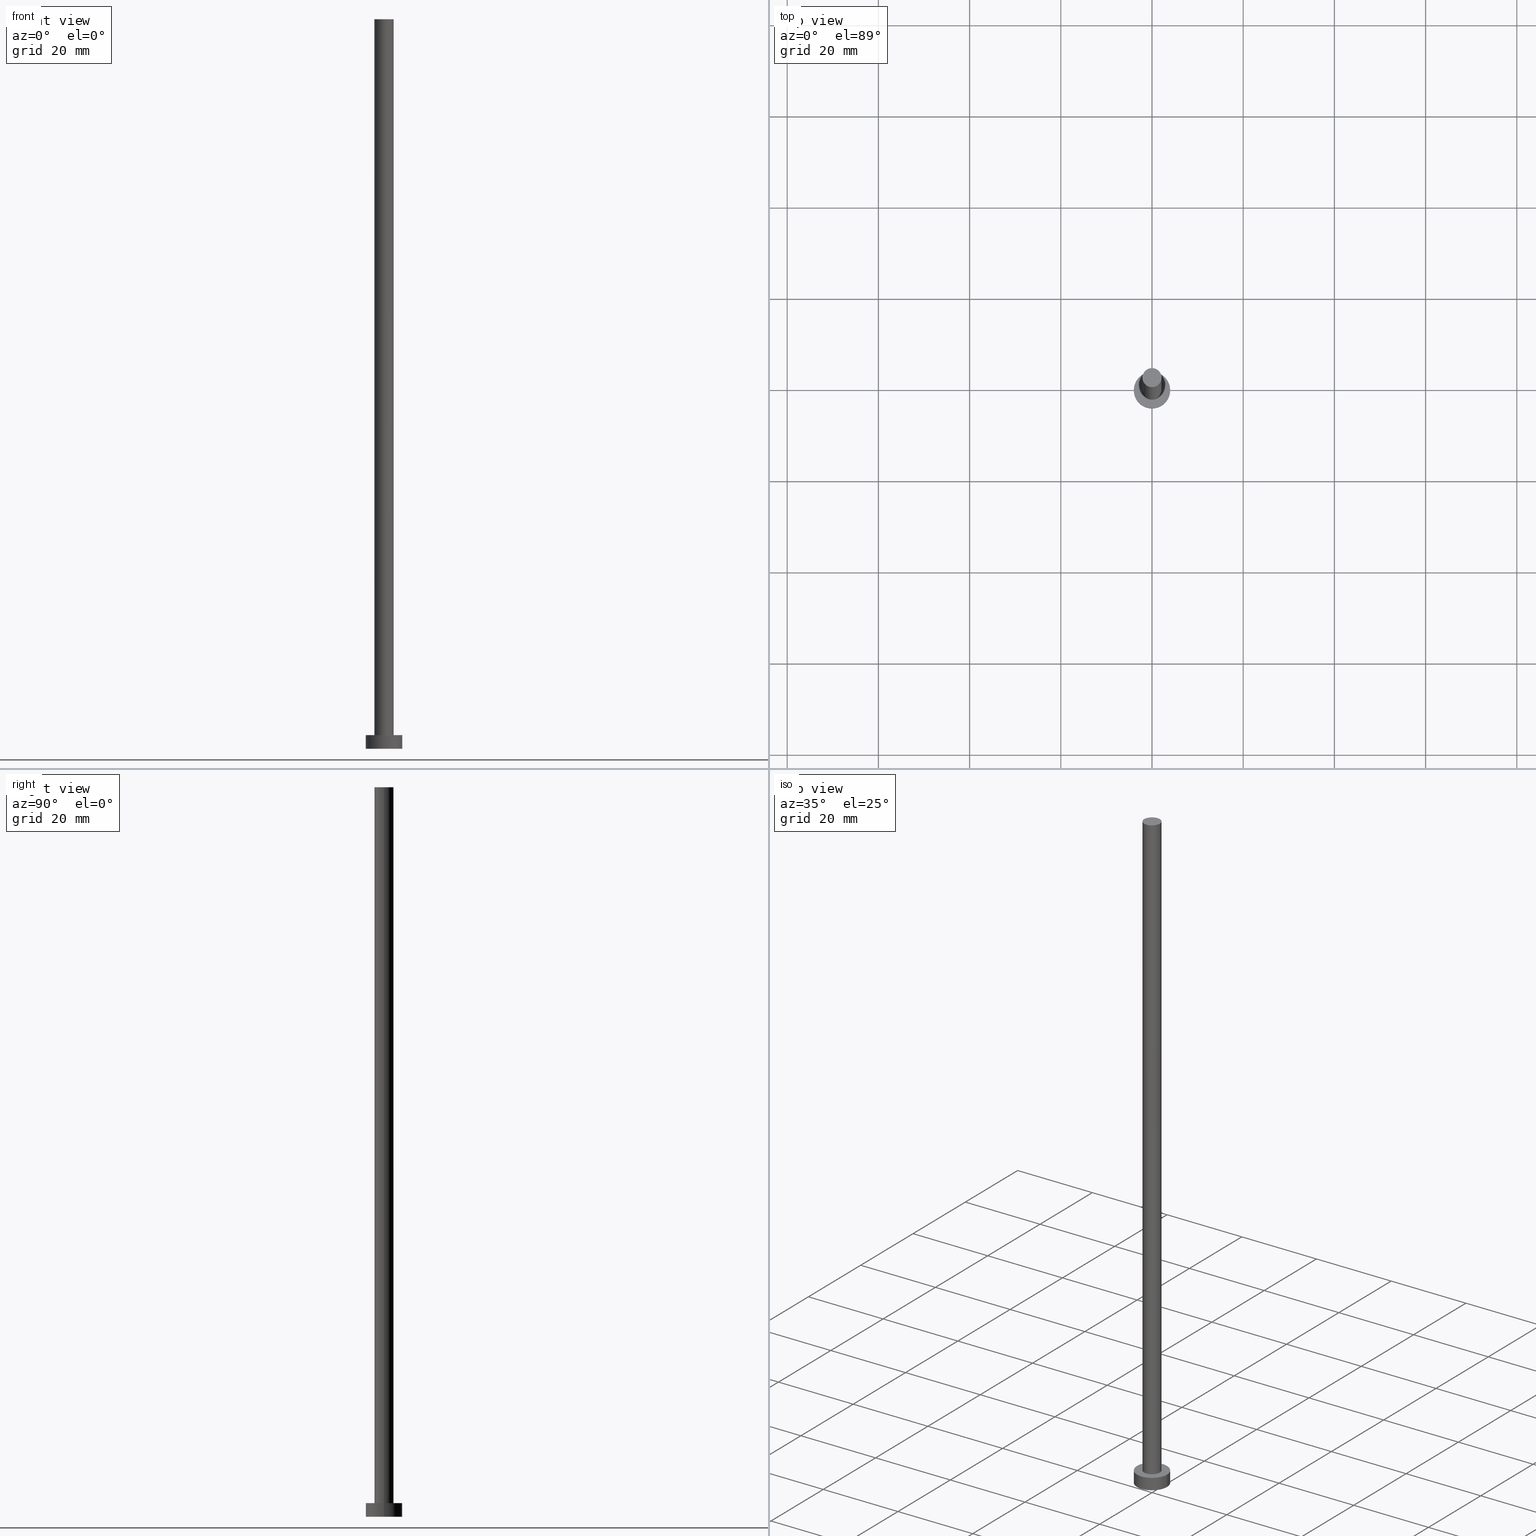
[diagram: canonical four-view strip — front | top / right | iso, engineering-drawing reading convention]
A machine part, canonical four-view strip (front | top / right | iso — engineering-drawing reading convention). The complete STEP part file that produces these views, byte-faithful:
ISO-10303-21;
HEADER;
FILE_DESCRIPTION (( 'STEP AP203' ),
    '1' );
FILE_NAME ('acfa.STEP',
    '2023-02-13T15:06:13',
    ( '' ),
    ( '' ),
    'SwSTEP 2.0',
    'SolidWorks 2019',
    '' );
FILE_SCHEMA (( 'CONFIG_CONTROL_DESIGN' ));
ENDSEC;

DATA;
#1 = EDGE_LOOP ( 'NONE', ( #242, #101 ) ) ;
#2 = CIRCLE ( 'NONE', #156, 4.000000000000000000 ) ;
#3 = EDGE_CURVE ( 'NONE', #191, #210, #122, .T. ) ;
#4 = AXIS2_PLACEMENT_3D ( 'NONE', #194, #23, #110 ) ;
#5 = MECHANICAL_CONTEXT ( 'NONE', #139, 'mechanical' ) ;
#6 = DIRECTION ( 'NONE',  ( 1.000000000000000000, 0.000000000000000000, 0.000000000000000000 ) ) ;
#7 = CYLINDRICAL_SURFACE ( 'NONE', #14, 2.100000000000000089 ) ;
#8 = ORIENTED_EDGE ( 'NONE', *, *, #215, .F. ) ;
#9 = APPROVAL_ROLE ( '' ) ;
#10 = LINE ( 'NONE', #228, #236 ) ;
#11 = PERSON_AND_ORGANIZATION ( #43, #159 ) ;
#12 = AXIS2_PLACEMENT_3D ( 'NONE', #19, #157, #212 ) ;
#13 = DIRECTION ( 'NONE',  ( 0.000000000000000000, 0.000000000000000000, 1.000000000000000000 ) ) ;
#14 = AXIS2_PLACEMENT_3D ( 'NONE', #50, #204, #154 ) ;
#15 = DIRECTION ( 'NONE',  ( 0.000000000000000000, 0.000000000000000000, 1.000000000000000000 ) ) ;
#16 = CARTESIAN_POINT ( 'NONE',  ( 0.000000000000000000, 0.000000000000000000, 3.000000000000000000 ) ) ;
#17 = DIRECTION ( 'NONE',  ( 1.000000000000000000, 0.000000000000000000, -0.000000000000000000 ) ) ;
#18 = VECTOR ( 'NONE', #56, 1000.000000000000000 ) ;
#19 = CARTESIAN_POINT ( 'NONE',  ( 0.000000000000000000, 0.000000000000000000, 3.000000000000000000 ) ) ;
#20 = PRODUCT_DEFINITION ( 'NEZN�M�', '', #221, #187 ) ;
#21 = DIRECTION ( 'NONE',  ( 1.000000000000000000, 0.000000000000000000, 0.000000000000000000 ) ) ;
#22 = DIRECTION ( 'NONE',  ( 0.000000000000000000, 0.000000000000000000, 1.000000000000000000 ) ) ;
#23 = DIRECTION ( 'NONE',  ( -0.000000000000000000, -0.000000000000000000, -1.000000000000000000 ) ) ;
#24 = CC_DESIGN_PERSON_AND_ORGANIZATION_ASSIGNMENT ( #84, #130, ( #222 ) ) ;
#25 = CARTESIAN_POINT ( 'NONE',  ( -2.100000000000000089, 0.000000000000000000, 3.000000000000000000 ) ) ;
#26 = DIRECTION ( 'NONE',  ( 0.000000000000000000, 0.000000000000000000, 1.000000000000000000 ) ) ;
#27 = ORIENTED_EDGE ( 'NONE', *, *, #87, .T. ) ;
#28 = ORIENTED_EDGE ( 'NONE', *, *, #106, .F. ) ;
#29 = CARTESIAN_POINT ( 'NONE',  ( 0.000000000000000000, 0.000000000000000000, 0.000000000000000000 ) ) ;
#30 = ADVANCED_FACE ( 'NONE', ( #35 ), #172, .F. ) ;
#31 = CC_DESIGN_PERSON_AND_ORGANIZATION_ASSIGNMENT ( #245, #207, ( #71 ) ) ;
#32 = CC_DESIGN_SECURITY_CLASSIFICATION ( #71, ( #221 ) ) ;
#33 = CIRCLE ( 'NONE', #241, 2.100000000000000089 ) ;
#34 = APPROVAL_STATUS ( 'not_yet_approved' ) ;
#35 = FACE_OUTER_BOUND ( 'NONE', #145, .T. ) ;
#36 = CARTESIAN_POINT ( 'NONE',  ( 0.000000000000000000, 0.000000000000000000, 160.0000000000000000 ) ) ;
#37 = SECURITY_CLASSIFICATION_LEVEL ( 'unclassified' ) ;
#38 = ADVANCED_FACE ( 'NONE', ( #189 ), #7, .T. ) ;
#39 = DIRECTION ( 'NONE',  ( -0.000000000000000000, -0.000000000000000000, -1.000000000000000000 ) ) ;
#40 = LINE ( 'NONE', #59, #202 ) ;
#41 = CARTESIAN_POINT ( 'NONE',  ( 0.000000000000000000, 0.000000000000000000, 3.000000000000000000 ) ) ;
#42 = LOCAL_TIME ( 16, 6, 13.00000000000000000, #224 ) ;
#43 = PERSON ( 'NEUR�EN�', 'NEUR�EN�', 'NEUR�EN�', ('NEUR�EN�'), ('NEUR�EN�'), ('NEUR�EN�') ) ;
#44 = CIRCLE ( 'NONE', #188, 4.000000000000000000 ) ;
#45 = ADVANCED_FACE ( 'NONE', ( #216 ), #96, .T. ) ;
#46 =( NAMED_UNIT ( * ) PLANE_ANGLE_UNIT ( ) SI_UNIT ( $, .RADIAN. ) );
#47 = APPLICATION_CONTEXT ( 'configuration controlled 3d designs of mechanical parts and assemblies' ) ;
#48 = CALENDAR_DATE ( 2023, 13, 2 ) ;
#49 = CALENDAR_DATE ( 2023, 13, 2 ) ;
#50 = CARTESIAN_POINT ( 'NONE',  ( 0.000000000000000000, 0.000000000000000000, 160.0000000000000000 ) ) ;
#51 = COORDINATED_UNIVERSAL_TIME_OFFSET ( 1, 0, .AHEAD. ) ;
#52 = VERTEX_POINT ( 'NONE', #99 ) ;
#53 = SHAPE_DEFINITION_REPRESENTATION ( #160, #119 ) ;
#54 = ADVANCED_FACE ( 'NONE', ( #179, #79 ), #238, .T. ) ;
#55 = CARTESIAN_POINT ( 'NONE',  ( 4.000000000000000000, 4.898587196589412829E-16, 3.000000000000000000 ) ) ;
#56 = DIRECTION ( 'NONE',  ( -0.000000000000000000, -0.000000000000000000, -1.000000000000000000 ) ) ;
#57 = CARTESIAN_POINT ( 'NONE',  ( 0.000000000000000000, 0.000000000000000000, 0.000000000000000000 ) ) ;
#58 = CARTESIAN_POINT ( 'NONE',  ( 0.000000000000000000, 0.000000000000000000, 160.0000000000000000 ) ) ;
#59 = CARTESIAN_POINT ( 'NONE',  ( -4.000000000000000000, 0.000000000000000000, 3.000000000000000000 ) ) ;
#60 = CC_DESIGN_DATE_AND_TIME_ASSIGNMENT ( #64, #128, ( #71 ) ) ;
#61 = EDGE_LOOP ( 'NONE', ( #104, #27 ) ) ;
#62 = AXIS2_PLACEMENT_3D ( 'NONE', #133, #111, #91 ) ;
#63 = VECTOR ( 'NONE', #134, 1000.000000000000000 ) ;
#64 = DATE_AND_TIME ( #248, #214 ) ;
#65 = CARTESIAN_POINT ( 'NONE',  ( 0.000000000000000000, 0.000000000000000000, 0.000000000000000000 ) ) ;
#66 = APPROVAL_DATE_TIME ( #124, #117 ) ;
#67 = AXIS2_PLACEMENT_3D ( 'NONE', #65, #105, #226 ) ;
#68 = EDGE_CURVE ( 'NONE', #210, #191, #112, .T. ) ;
#69 = APPLICATION_PROTOCOL_DEFINITION ( 'international standard', 'config_control_design', 1994, #47 ) ;
#70 = ORIENTED_EDGE ( 'NONE', *, *, #211, .F. ) ;
#71 = SECURITY_CLASSIFICATION ( '', '', #37 ) ;
#72 = CC_DESIGN_PERSON_AND_ORGANIZATION_ASSIGNMENT ( #147, #127, ( #221 ) ) ;
#73 = CIRCLE ( 'NONE', #161, 4.000000000000000000 ) ;
#74 = CARTESIAN_POINT ( 'NONE',  ( -2.100000000000000089, 0.000000000000000000, 160.0000000000000000 ) ) ;
#75 = CARTESIAN_POINT ( 'NONE',  ( 0.000000000000000000, 0.000000000000000000, 3.000000000000000000 ) ) ;
#76 = CARTESIAN_POINT ( 'NONE',  ( 2.100000000000000089, 2.571758278209441957E-16, 160.0000000000000000 ) ) ;
#77 = CC_DESIGN_APPROVAL ( #162, ( #20 ) ) ;
#78 = CYLINDRICAL_SURFACE ( 'NONE', #12, 4.000000000000000000 ) ;
#79 = FACE_OUTER_BOUND ( 'NONE', #61, .T. ) ;
#80 = ORIENTED_EDGE ( 'NONE', *, *, #87, .F. ) ;
#81 = EDGE_CURVE ( 'NONE', #210, #142, #10, .T. ) ;
#82 = ORIENTED_EDGE ( 'NONE', *, *, #126, .T. ) ;
#83 = LOCAL_TIME ( 16, 6, 13.00000000000000000, #243 ) ;
#84 = PERSON_AND_ORGANIZATION ( #43, #159 ) ;
#85 = DATE_AND_TIME ( #165, #146 ) ;
#86 = VERTEX_POINT ( 'NONE', #55 ) ;
#87 = EDGE_CURVE ( 'NONE', #86, #52, #44, .T. ) ;
#88 = PERSON_AND_ORGANIZATION ( #43, #159 ) ;
#89 = EDGE_CURVE ( 'NONE', #52, #86, #73, .T. ) ;
#90 = EDGE_LOOP ( 'NONE', ( #148, #182, #114, #158 ) ) ;
#91 = DIRECTION ( 'NONE',  ( 1.000000000000000000, 0.000000000000000000, 0.000000000000000000 ) ) ;
#92 = CARTESIAN_POINT ( 'NONE',  ( 0.000000000000000000, 0.000000000000000000, 160.0000000000000000 ) ) ;
#93 = AXIS2_PLACEMENT_3D ( 'NONE', #41, #26, #17 ) ;
#94 = CARTESIAN_POINT ( 'NONE',  ( -2.100000000000000089, 0.000000000000000000, 160.0000000000000000 ) ) ;
#95 = DIRECTION ( 'NONE',  ( 0.000000000000000000, 0.000000000000000000, 1.000000000000000000 ) ) ;
#96 = CYLINDRICAL_SURFACE ( 'NONE', #4, 2.100000000000000089 ) ;
#97 = ADVANCED_FACE ( 'NONE', ( #173 ), #137, .T. ) ;
#98 = CYLINDRICAL_SURFACE ( 'NONE', #239, 4.000000000000000000 ) ;
#99 = CARTESIAN_POINT ( 'NONE',  ( -4.000000000000000000, 0.000000000000000000, 3.000000000000000000 ) ) ;
#100 = FACE_OUTER_BOUND ( 'NONE', #184, .T. ) ;
#101 = ORIENTED_EDGE ( 'NONE', *, *, #68, .T. ) ;
#102 = APPROVAL_PERSON_ORGANIZATION ( #205, #123, #143 ) ;
#103 = ORIENTED_EDGE ( 'NONE', *, *, #3, .F. ) ;
#104 = ORIENTED_EDGE ( 'NONE', *, *, #89, .T. ) ;
#105 = DIRECTION ( 'NONE',  ( 0.000000000000000000, 0.000000000000000000, 1.000000000000000000 ) ) ;
#106 = EDGE_CURVE ( 'NONE', #219, #142, #33, .T. ) ;
#107 = DATE_AND_TIME ( #48, #125 ) ;
#108 = ORIENTED_EDGE ( 'NONE', *, *, #206, .F. ) ;
#109 = DIRECTION ( 'NONE',  ( 0.000000000000000000, 0.000000000000000000, 1.000000000000000000 ) ) ;
#110 = DIRECTION ( 'NONE',  ( -1.000000000000000000, 0.000000000000000000, 0.000000000000000000 ) ) ;
#111 = DIRECTION ( 'NONE',  ( 0.000000000000000000, 0.000000000000000000, 1.000000000000000000 ) ) ;
#112 = CIRCLE ( 'NONE', #152, 2.100000000000000089 ) ;
#113 = CARTESIAN_POINT ( 'NONE',  ( 2.100000000000000089, 2.571758278209441957E-16, 3.000000000000000000 ) ) ;
#114 = ORIENTED_EDGE ( 'NONE', *, *, #206, .T. ) ;
#115 = CARTESIAN_POINT ( 'NONE',  ( 4.000000000000000000, 4.898587196589412829E-16, 3.000000000000000000 ) ) ;
#116 = APPROVAL_PERSON_ORGANIZATION ( #169, #117, #9 ) ;
#117 = APPROVAL ( #229, 'NEUR�EN�' ) ;
#118 = AXIS2_PLACEMENT_3D ( 'NONE', #36, #15, #168 ) ;
#119 = ADVANCED_BREP_SHAPE_REPRESENTATION ( 'acfa', ( #246, #163 ), #135 ) ;
#120 = ORIENTED_EDGE ( 'NONE', *, *, #89, .F. ) ;
#121 = AXIS2_PLACEMENT_3D ( 'NONE', #75, #237, #21 ) ;
#122 = CIRCLE ( 'NONE', #118, 2.100000000000000089 ) ;
#123 = APPROVAL ( #34, 'NEUR�EN�' ) ;
#124 = DATE_AND_TIME ( #49, #42 ) ;
#125 = LOCAL_TIME ( 16, 6, 13.00000000000000000, #223 ) ;
#126 = EDGE_CURVE ( 'NONE', #164, #136, #2, .T. ) ;
#127 = PERSON_AND_ORGANIZATION_ROLE ( 'creator' ) ;
#128 = DATE_TIME_ROLE ( 'classification_date' ) ;
#129 = DIRECTION ( 'NONE',  ( -0.000000000000000000, -0.000000000000000000, -1.000000000000000000 ) ) ;
#130 = PERSON_AND_ORGANIZATION_ROLE ( 'design_owner' ) ;
#131 = CARTESIAN_POINT ( 'NONE',  ( 0.000000000000000000, 0.000000000000000000, 3.000000000000000000 ) ) ;
#132 = EDGE_LOOP ( 'NONE', ( #28, #108 ) ) ;
#133 = CARTESIAN_POINT ( 'NONE',  ( 0.000000000000000000, 0.000000000000000000, 0.000000000000000000 ) ) ;
#134 = DIRECTION ( 'NONE',  ( -0.000000000000000000, -0.000000000000000000, -1.000000000000000000 ) ) ;
#135 =( GEOMETRIC_REPRESENTATION_CONTEXT ( 3 ) GLOBAL_UNCERTAINTY_ASSIGNED_CONTEXT ( ( #138 ) ) GLOBAL_UNIT_ASSIGNED_CONTEXT ( ( #200, #46, #141 ) ) REPRESENTATION_CONTEXT ( 'NONE', 'WORKASPACE' ) );
#136 = VERTEX_POINT ( 'NONE', #231 ) ;
#137 = PLANE ( 'NONE',  #140 ) ;
#138 = UNCERTAINTY_MEASURE_WITH_UNIT (LENGTH_MEASURE( 1.000000000000000082E-05 ), #200, 'distance_accuracy_value', 'NONE');
#139 = APPLICATION_CONTEXT ( 'configuration controlled 3d designs of mechanical parts and assemblies' ) ;
#140 = AXIS2_PLACEMENT_3D ( 'NONE', #58, #176, #235 ) ;
#141 =( NAMED_UNIT ( * ) SI_UNIT ( $, .STERADIAN. ) SOLID_ANGLE_UNIT ( ) );
#142 = VERTEX_POINT ( 'NONE', #113 ) ;
#143 = APPROVAL_ROLE ( '' ) ;
#144 = DIRECTION ( 'NONE',  ( 0.000000000000000000, 0.000000000000000000, 1.000000000000000000 ) ) ;
#145 = EDGE_LOOP ( 'NONE', ( #249, #220 ) ) ;
#146 = LOCAL_TIME ( 16, 6, 13.00000000000000000, #209 ) ;
#147 = PERSON_AND_ORGANIZATION ( #43, #159 ) ;
#148 = ORIENTED_EDGE ( 'NONE', *, *, #68, .F. ) ;
#149 = APPROVAL_ROLE ( '' ) ;
#150 = ADVANCED_FACE ( 'NONE', ( #195 ), #98, .T. ) ;
#151 = CIRCLE ( 'NONE', #62, 4.000000000000000000 ) ;
#152 = AXIS2_PLACEMENT_3D ( 'NONE', #92, #13, #6 ) ;
#153 = DIRECTION ( 'NONE',  ( -0.000000000000000000, -0.000000000000000000, -1.000000000000000000 ) ) ;
#154 = DIRECTION ( 'NONE',  ( -1.000000000000000000, 0.000000000000000000, 0.000000000000000000 ) ) ;
#155 = CC_DESIGN_PERSON_AND_ORGANIZATION_ASSIGNMENT ( #11, #227, ( #221 ) ) ;
#156 = AXIS2_PLACEMENT_3D ( 'NONE', #57, #109, #196 ) ;
#157 = DIRECTION ( 'NONE',  ( -0.000000000000000000, -0.000000000000000000, -1.000000000000000000 ) ) ;
#158 = ORIENTED_EDGE ( 'NONE', *, *, #252, .F. ) ;
#159 = ORGANIZATION ( 'NEUR�EN�', 'NEUR�EN�', '' ) ;
#160 = PRODUCT_DEFINITION_SHAPE ( 'NONE', 'NONE',  #20 ) ;
#161 = AXIS2_PLACEMENT_3D ( 'NONE', #233, #22, #181 ) ;
#162 = APPROVAL ( #190, 'NEUR�EN�' ) ;
#163 = AXIS2_PLACEMENT_3D ( 'NONE', #29, #144, #186 ) ;
#164 = VERTEX_POINT ( 'NONE', #251 ) ;
#165 = CALENDAR_DATE ( 2023, 13, 2 ) ;
#166 = CC_DESIGN_PERSON_AND_ORGANIZATION_ASSIGNMENT ( #167, #203, ( #20 ) ) ;
#167 = PERSON_AND_ORGANIZATION ( #43, #159 ) ;
#168 = DIRECTION ( 'NONE',  ( 1.000000000000000000, 0.000000000000000000, 0.000000000000000000 ) ) ;
#169 = PERSON_AND_ORGANIZATION ( #43, #159 ) ;
#170 = CC_DESIGN_DATE_AND_TIME_ASSIGNMENT ( #244, #201, ( #20 ) ) ;
#171 = CALENDAR_DATE ( 2023, 13, 2 ) ;
#172 = PLANE ( 'NONE',  #67 ) ;
#173 = FACE_OUTER_BOUND ( 'NONE', #1, .T. ) ;
#174 = ADVANCED_FACE ( 'NONE', ( #100 ), #78, .T. ) ;
#175 = CLOSED_SHELL ( 'NONE', ( #45, #174, #150, #54, #30, #38, #97 ) ) ;
#176 = DIRECTION ( 'NONE',  ( 0.000000000000000000, 0.000000000000000000, 1.000000000000000000 ) ) ;
#177 = CIRCLE ( 'NONE', #121, 2.100000000000000089 ) ;
#178 = DIRECTION ( 'NONE',  ( -1.000000000000000000, 0.000000000000000000, 0.000000000000000000 ) ) ;
#179 = FACE_BOUND ( 'NONE', #132, .T. ) ;
#180 = ORIENTED_EDGE ( 'NONE', *, *, #252, .T. ) ;
#181 = DIRECTION ( 'NONE',  ( 1.000000000000000000, 0.000000000000000000, 0.000000000000000000 ) ) ;
#182 = ORIENTED_EDGE ( 'NONE', *, *, #81, .T. ) ;
#183 = PRODUCT_RELATED_PRODUCT_CATEGORY ( 'detail', '', ( #222 ) ) ;
#184 = EDGE_LOOP ( 'NONE', ( #80, #213, #82, #70 ) ) ;
#185 = CC_DESIGN_APPROVAL ( #117, ( #221 ) ) ;
#186 = DIRECTION ( 'NONE',  ( 1.000000000000000000, 0.000000000000000000, 0.000000000000000000 ) ) ;
#187 = DESIGN_CONTEXT ( 'detailed design', #47, 'design' ) ;
#188 = AXIS2_PLACEMENT_3D ( 'NONE', #131, #95, #253 ) ;
#189 = FACE_OUTER_BOUND ( 'NONE', #240, .T. ) ;
#190 = APPROVAL_STATUS ( 'not_yet_approved' ) ;
#191 = VERTEX_POINT ( 'NONE', #94 ) ;
#192 = APPROVAL_DATE_TIME ( #107, #123 ) ;
#193 = EDGE_LOOP ( 'NONE', ( #8, #120, #247, #197 ) ) ;
#194 = CARTESIAN_POINT ( 'NONE',  ( 0.000000000000000000, 0.000000000000000000, 160.0000000000000000 ) ) ;
#195 = FACE_OUTER_BOUND ( 'NONE', #193, .T. ) ;
#196 = DIRECTION ( 'NONE',  ( 1.000000000000000000, 0.000000000000000000, 0.000000000000000000 ) ) ;
#197 = ORIENTED_EDGE ( 'NONE', *, *, #234, .T. ) ;
#198 = CARTESIAN_POINT ( 'NONE',  ( 0.000000000000000000, 0.000000000000000000, 3.000000000000000000 ) ) ;
#199 = ORIENTED_EDGE ( 'NONE', *, *, #106, .T. ) ;
#200 =( LENGTH_UNIT ( ) NAMED_UNIT ( * ) SI_UNIT ( .MILLI., .METRE. ) );
#201 = DATE_TIME_ROLE ( 'creation_date' ) ;
#202 = VECTOR ( 'NONE', #153, 1000.000000000000000 ) ;
#203 = PERSON_AND_ORGANIZATION_ROLE ( 'creator' ) ;
#204 = DIRECTION ( 'NONE',  ( -0.000000000000000000, -0.000000000000000000, -1.000000000000000000 ) ) ;
#205 = PERSON_AND_ORGANIZATION ( #43, #159 ) ;
#206 = EDGE_CURVE ( 'NONE', #142, #219, #177, .T. ) ;
#207 = PERSON_AND_ORGANIZATION_ROLE ( 'classification_officer' ) ;
#208 = ORIENTED_EDGE ( 'NONE', *, *, #81, .F. ) ;
#209 = COORDINATED_UNIVERSAL_TIME_OFFSET ( 1, 0, .AHEAD. ) ;
#210 = VERTEX_POINT ( 'NONE', #76 ) ;
#211 = EDGE_CURVE ( 'NONE', #52, #136, #40, .T. ) ;
#212 = DIRECTION ( 'NONE',  ( -1.000000000000000000, 0.000000000000000000, 0.000000000000000000 ) ) ;
#213 = ORIENTED_EDGE ( 'NONE', *, *, #215, .T. ) ;
#214 = LOCAL_TIME ( 16, 6, 13.00000000000000000, #51 ) ;
#215 = EDGE_CURVE ( 'NONE', #86, #164, #217, .T. ) ;
#216 = FACE_OUTER_BOUND ( 'NONE', #90, .T. ) ;
#217 = LINE ( 'NONE', #115, #18 ) ;
#218 = CC_DESIGN_APPROVAL ( #123, ( #71 ) ) ;
#219 = VERTEX_POINT ( 'NONE', #25 ) ;
#220 = ORIENTED_EDGE ( 'NONE', *, *, #126, .F. ) ;
#221 = PRODUCT_DEFINITION_FORMATION_WITH_SPECIFIED_SOURCE ( 'LIBOVOLN�', '', #222, .NOT_KNOWN. ) ;
#222 = PRODUCT ( 'acfa', 'acfa', '', ( #5 ) ) ;
#223 = COORDINATED_UNIVERSAL_TIME_OFFSET ( 1, 0, .AHEAD. ) ;
#224 = COORDINATED_UNIVERSAL_TIME_OFFSET ( 1, 0, .AHEAD. ) ;
#225 = APPROVAL_PERSON_ORGANIZATION ( #88, #162, #149 ) ;
#226 = DIRECTION ( 'NONE',  ( 1.000000000000000000, 0.000000000000000000, -0.000000000000000000 ) ) ;
#227 = PERSON_AND_ORGANIZATION_ROLE ( 'design_supplier' ) ;
#228 = CARTESIAN_POINT ( 'NONE',  ( 2.100000000000000089, 2.571758278209441957E-16, 160.0000000000000000 ) ) ;
#229 = APPROVAL_STATUS ( 'not_yet_approved' ) ;
#230 = APPROVAL_DATE_TIME ( #85, #162 ) ;
#231 = CARTESIAN_POINT ( 'NONE',  ( -4.000000000000000000, 0.000000000000000000, 0.000000000000000000 ) ) ;
#232 = DIRECTION ( 'NONE',  ( 1.000000000000000000, 0.000000000000000000, 0.000000000000000000 ) ) ;
#233 = CARTESIAN_POINT ( 'NONE',  ( 0.000000000000000000, 0.000000000000000000, 3.000000000000000000 ) ) ;
#234 = EDGE_CURVE ( 'NONE', #136, #164, #151, .T. ) ;
#235 = DIRECTION ( 'NONE',  ( 1.000000000000000000, 0.000000000000000000, -0.000000000000000000 ) ) ;
#236 = VECTOR ( 'NONE', #129, 1000.000000000000000 ) ;
#237 = DIRECTION ( 'NONE',  ( 0.000000000000000000, 0.000000000000000000, 1.000000000000000000 ) ) ;
#238 = PLANE ( 'NONE',  #93 ) ;
#239 = AXIS2_PLACEMENT_3D ( 'NONE', #16, #39, #178 ) ;
#240 = EDGE_LOOP ( 'NONE', ( #208, #103, #180, #199 ) ) ;
#241 = AXIS2_PLACEMENT_3D ( 'NONE', #198, #254, #232 ) ;
#242 = ORIENTED_EDGE ( 'NONE', *, *, #3, .T. ) ;
#243 = COORDINATED_UNIVERSAL_TIME_OFFSET ( 1, 0, .AHEAD. ) ;
#244 = DATE_AND_TIME ( #171, #83 ) ;
#245 = PERSON_AND_ORGANIZATION ( #43, #159 ) ;
#246 = MANIFOLD_SOLID_BREP ( 'P�idat vysunut�m3', #175 ) ;
#247 = ORIENTED_EDGE ( 'NONE', *, *, #211, .T. ) ;
#248 = CALENDAR_DATE ( 2023, 13, 2 ) ;
#249 = ORIENTED_EDGE ( 'NONE', *, *, #234, .F. ) ;
#250 = LINE ( 'NONE', #74, #63 ) ;
#251 = CARTESIAN_POINT ( 'NONE',  ( 4.000000000000000000, 4.898587196589412829E-16, 0.000000000000000000 ) ) ;
#252 = EDGE_CURVE ( 'NONE', #191, #219, #250, .T. ) ;
#253 = DIRECTION ( 'NONE',  ( 1.000000000000000000, 0.000000000000000000, 0.000000000000000000 ) ) ;
#254 = DIRECTION ( 'NONE',  ( 0.000000000000000000, 0.000000000000000000, 1.000000000000000000 ) ) ;
#255 = APPLICATION_PROTOCOL_DEFINITION ( 'international standard', 'config_control_design', 1994, #139 ) ;
ENDSEC;
END-ISO-10303-21;
